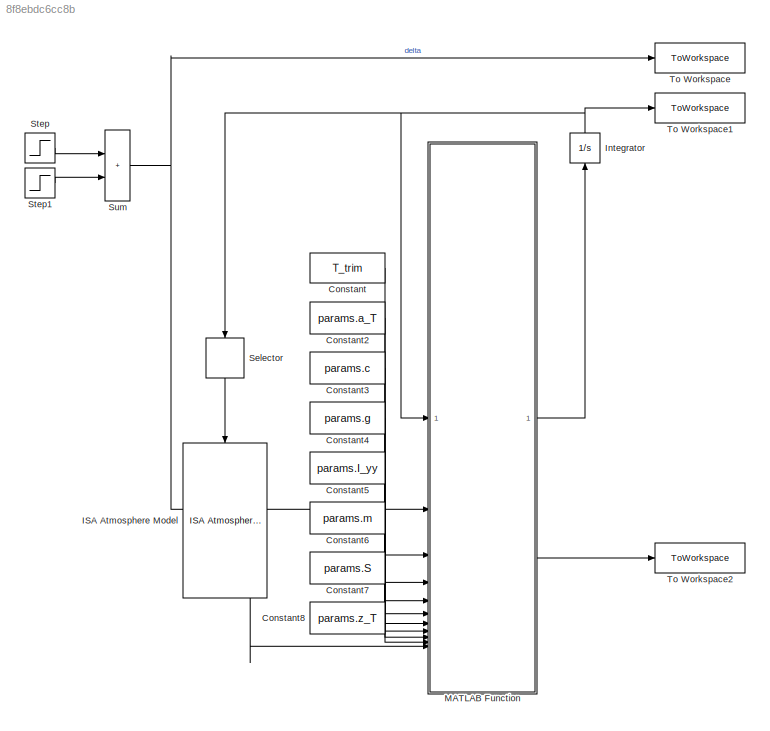
MODEL slx_8f8ebdc6cc8b
KIND model
CONFIG AbsTol = 1e-8
CONFIG EnableMultiTasking = off
CONFIG FixedStep = auto
CONFIG MaxStep = auto
CONFIG MinStep = auto
CONFIG RelTol = 1e-6
CONFIG SampleTimeConstraint = Unconstrained
CONFIG SolverName = ode45
CONFIG StartTime = 0.0
CONFIG StopTime = 100
BLOCK [Constant] Constant
  Value = T_trim
BLOCK [Constant] Constant2
  Value = params.a_T
BLOCK [Constant] Constant3
  Value = params.c
BLOCK [Constant] Constant4
  Value = params.g
BLOCK [Constant] Constant5
  Value = params.I_yy
BLOCK [Constant] Constant6
  Value = params.m
BLOCK [Constant] Constant7
  Value = params.S
BLOCK [Constant] Constant8
  Value = params.z_T
BLOCK [Reference] ISA Atmosphere Model  REF=aerolibatmos2/ISA Atmosphere Model
  NameLocation = left
  SourceBlock = aerolibatmos2/ISA Atmosphere Model
  SourceType = International Standard Atmosphere Model
BLOCK [Integrator] Integrator
  InitialCondition = x_trim
  NameLocation = right
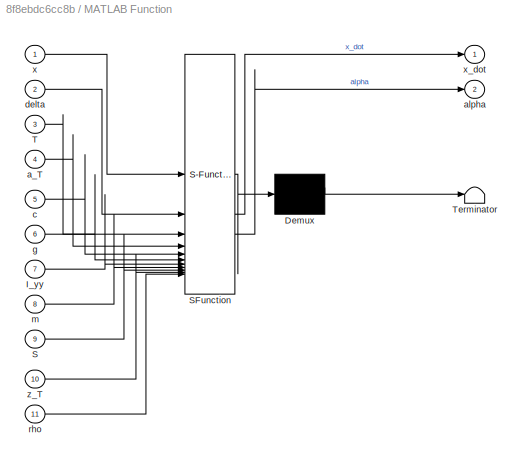
BLOCK [SubSystem] MATLAB Function
  ErrorFcn = Stateflow.Translate.translate
  PermitHierarchicalResolution = ExplicitOnly
  SFBlockType = MATLAB Function
  TreatAsAtomicUnit = on
BLOCK [Demux] MATLAB Function/ Demux 
  Outputs = 1
BLOCK [S-Function] MATLAB Function/ SFunction 
  EnableBusSupport = on
  FunctionName = sf_sfun
  PortCounts = [11 3]
  SFcnIsStateOwnerBlock = off
  SFunctionDeploymentMode = off
  Tag = Stateflow S-Function 2
BLOCK [Terminator] MATLAB Function/ Terminator 
BLOCK [Inport] MATLAB Function/I_yy
  Port = 7
BLOCK [Inport] MATLAB Function/S
  Port = 9
BLOCK [Inport] MATLAB Function/T
  Port = 3
BLOCK [Inport] MATLAB Function/a_T
  Port = 4
BLOCK [Outport] MATLAB Function/alpha
  Port = 2
BLOCK [Inport] MATLAB Function/c
  Port = 5
BLOCK [Inport] MATLAB Function/delta
  Port = 2
BLOCK [Inport] MATLAB Function/g
  Port = 6
BLOCK [Inport] MATLAB Function/m
  Port = 8
BLOCK [Inport] MATLAB Function/rho
  Port = 11
BLOCK [Inport] MATLAB Function/x
BLOCK [Outport] MATLAB Function/x_dot
BLOCK [Inport] MATLAB Function/z_T
  Port = 10
BLOCK [Selector] Selector
  IndexOptions = Index vector (dialog)
  Indices = [5]
  InputPortWidth = 5
  NameLocation = left
  OutputSizes = 1
BLOCK [Step] Step
  After = delta_trim - pi/180
  Before = delta_trim
  SampleTime = 0
  Time = 5
BLOCK [Step] Step1
  After = (pi/180)
  SampleTime = 0
  Time = 10
BLOCK [Sum] Sum
  IconShape = rectangular
BLOCK [ToWorkspace] To Workspace
  FixptAsFi = on
  MaxDataPoints = inf
  SampleTime = -1
  VariableName = delta
BLOCK [ToWorkspace] To Workspace1
  FixptAsFi = on
  MaxDataPoints = inf
  SampleTime = -1
  Save2DSignal = 2-D array (concatenate along first dimension)
  SaveFormat = Structure
  VariableName = x
BLOCK [ToWorkspace] To Workspace2
  FixptAsFi = on
  MaxDataPoints = inf
  SampleTime = -1
  SaveFormat = Timeseries
  VariableName = alpha
LINE Constant2:1 -> MATLAB Function:4
LINE Constant3:1 -> MATLAB Function:5
LINE Constant4:1 -> MATLAB Function:6
LINE Constant5:1 -> MATLAB Function:7
LINE Constant6:1 -> MATLAB Function:8
LINE Constant7:1 -> MATLAB Function:9
LINE Constant8:1 -> MATLAB Function:10
LINE Constant:1 -> MATLAB Function:3
LINE ISA Atmosphere Model:4 -> MATLAB Function:11
NET Integrator:1 -> MATLAB Function:1, Selector:1, To Workspace1:1
LINE MATLAB Function:1 -> Integrator:1
LINE MATLAB Function:2 -> To Workspace2:1
LINE Selector:1 -> ISA Atmosphere Model:1
LINE Step1:1 -> Sum:2
LINE Step:1 -> Sum:1
NET Sum:1 -> MATLAB Function:2, To Workspace:1
note: NET lines group one-source signal fan-out (src -> all destinations, sorted); 1:1 wires keep LINE
CHART MATLAB Function states=1 transitions=1
  STATE_LABEL 'eML_blk_kernel()'
  STATE_LABEL 'SCRIPT:\nfunction [x_dot, alpha] = f_extended(x, delta, T, a_T, c, g, I_yy, m, S, z_T, rho)\n        u = x(1);\n        w = x(2);\n        q = x(3);\n        theta = x(4);\n        % h = x(5);\n\n        if (u ~= 0)\n            alpha = atan(w / u);\n        else\n            alpha = 0;\n        end\n\n        V = sqrt(u ^ 2 + w ^ 2);\n\n        c_L0 = 0.895;\n        c_L_alpha = 5.01;\n        c_L_delta = 0.722;\n ...<+1163ch>'
CHART  states=0 transitions=0
